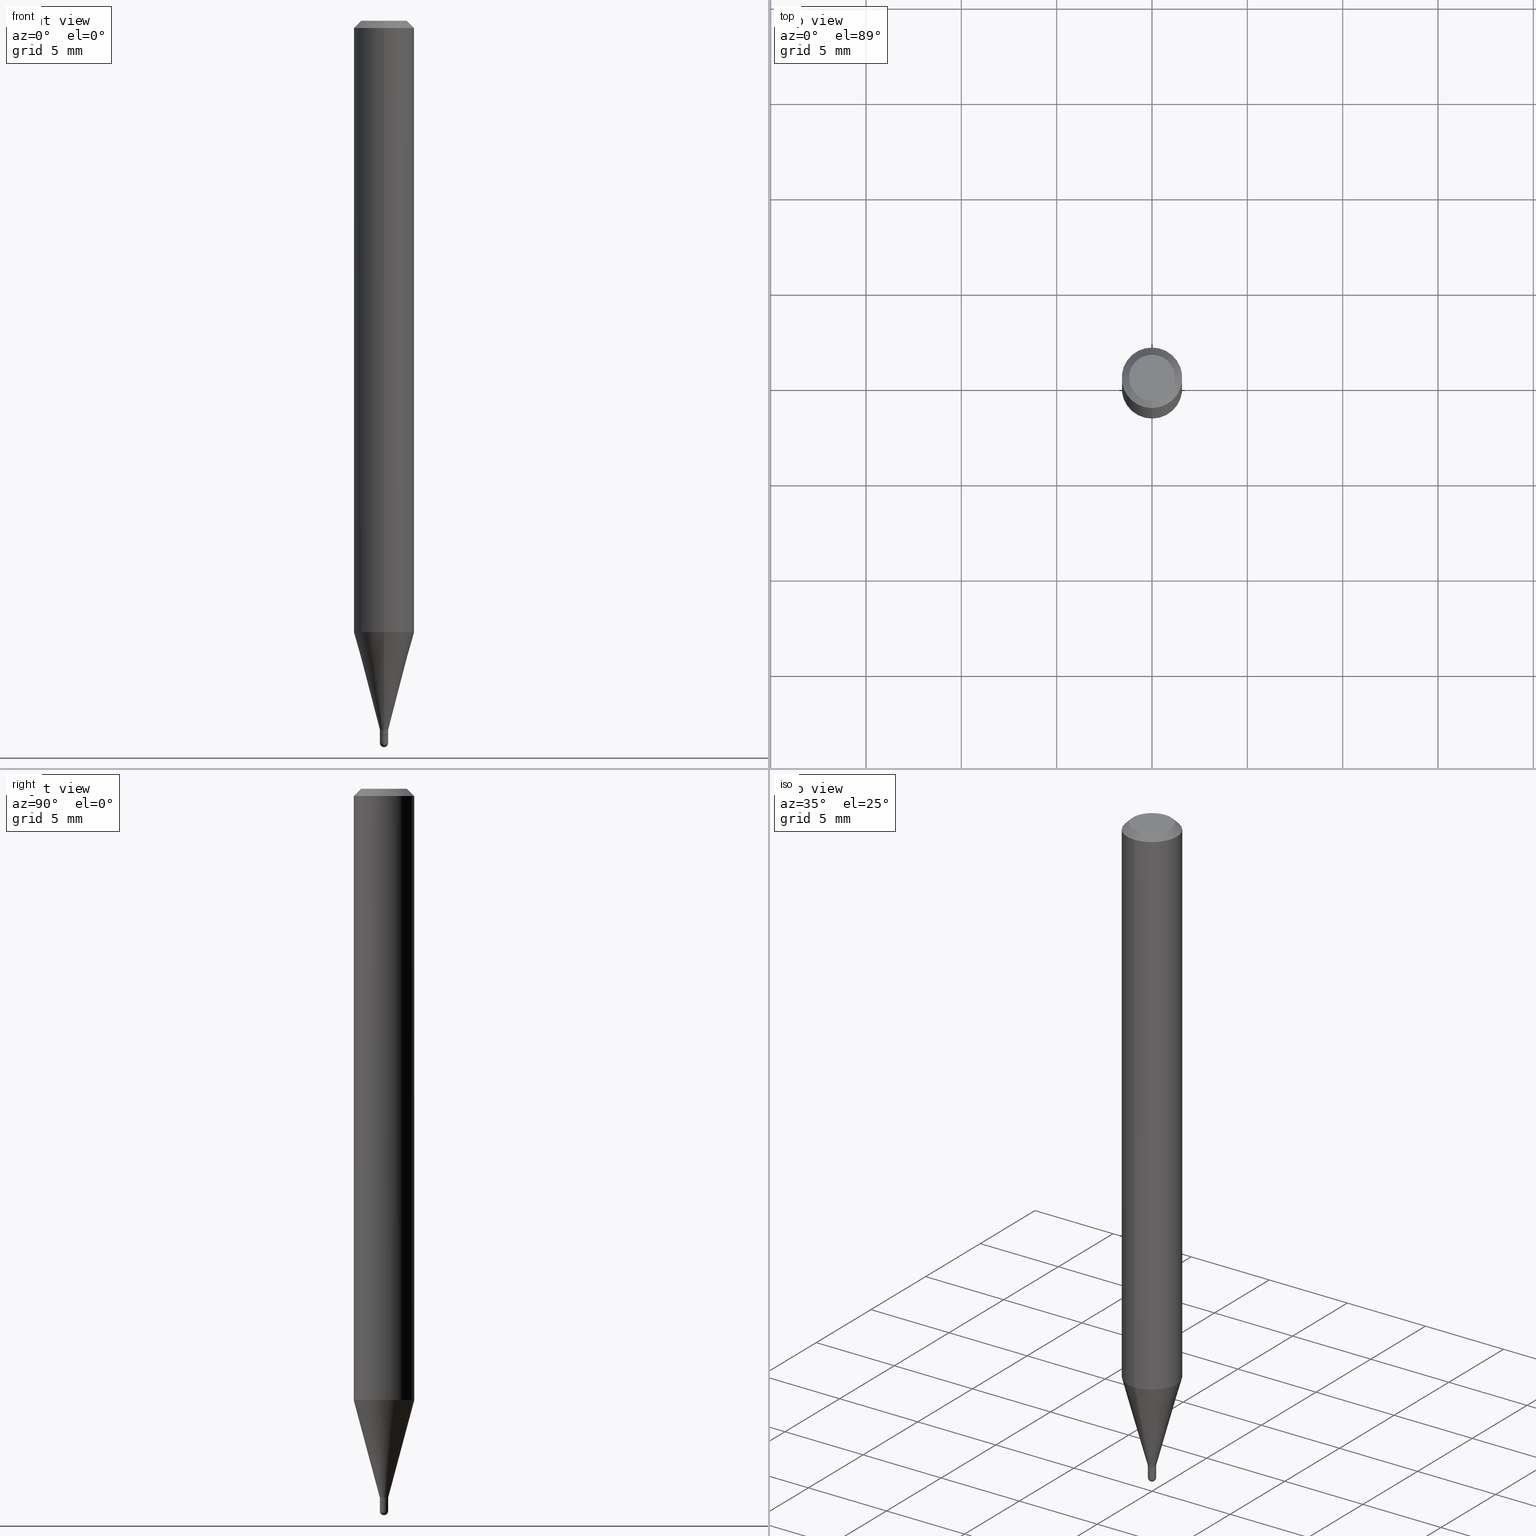
[diagram: canonical four-view strip — front | top / right | iso, engineering-drawing reading convention]
A machine part, canonical four-view strip (front | top / right | iso — engineering-drawing reading convention). The complete STEP part file that produces these views, byte-faithful:
ISO-10303-21;
HEADER;
FILE_DESCRIPTION (( 'STEP AP203' ),
    '1' );
FILE_NAME ('00752.STEP',
    '2024-03-07T18:12:14',
    ( '' ),
    ( '' ),
    'SwSTEP 2.0',
    'SolidWorks 2023',
    '' );
FILE_SCHEMA (( 'CONFIG_CONTROL_DESIGN' ));
ENDSEC;

DATA;
#1 = CARTESIAN_POINT ( 'NONE',  ( 0.000000000000000000, 0.000000000000000000, 0.000000000000000000 ) ) ;
#2 = FACE_OUTER_BOUND ( 'NONE', #91, .T. ) ;
#3 = AXIS2_PLACEMENT_3D ( 'NONE', #103, #63, #212 ) ;
#4 = DATE_TIME_ROLE ( 'classification_date' ) ;
#5 = ORIENTED_EDGE ( 'NONE', *, *, #302, .F. ) ;
#6 = DIRECTION ( 'NONE',  ( -6.982962677686266711E-15, -1.000000000000000000, 0.000000000000000000 ) ) ;
#7 = FACE_OUTER_BOUND ( 'NONE', #478, .T. ) ;
#8 = DIRECTION ( 'NONE',  ( -6.982962677686265922E-15, -1.000000000000000000, 4.370956789862821150E-15 ) ) ;
#9 = CYLINDRICAL_SURFACE ( 'NONE', #16, 0.06250000000000000000 ) ;
#10 = DIRECTION ( 'NONE',  ( 4.937700262164548042E-15, 0.7071067811865451302, -0.7071067811865499042 ) ) ;
#11 = FACE_OUTER_BOUND ( 'NONE', #167, .T. ) ;
#12 = ADVANCED_FACE ( 'NONE', ( #331 ), #30, .T. ) ;
#13 = ORIENTED_EDGE ( 'NONE', *, *, #207, .T. ) ;
#14 = DIRECTION ( 'NONE',  ( 1.000000000000000000, -6.982962677686273021E-15, 0.000000000000000000 ) ) ;
#15 = UNCERTAINTY_MEASURE_WITH_UNIT (LENGTH_MEASURE( 1.000000000000000082E-05 ), #398, 'distance_accuracy_value', 'NONE');
#16 = AXIS2_PLACEMENT_3D ( 'NONE', #130, #284, #432 ) ;
#17 = CARTESIAN_POINT ( 'NONE',  ( -0.008500000000000002345, -5.116597822630066156E-15, -1.491500000000000270 ) ) ;
#18 = DIRECTION ( 'NONE',  ( -2.445473166795262930E-29, 3.491475094201254454E-15, 1.000000000000000000 ) ) ;
#19 = ORIENTED_EDGE ( 'NONE', *, *, #60, .T. ) ;
#20 = DIRECTION ( 'NONE',  ( -2.445473166795262930E-29, 3.491475094201254059E-15, 1.000000000000000000 ) ) ;
#21 = EDGE_CURVE ( 'NONE', #510, #289, #379, .T. ) ;
#22 = DIRECTION ( 'NONE',  ( -2.445468806185136597E-29, 3.491481338843145583E-15, 1.000000000000000000 ) ) ;
#23 = DIRECTION ( 'NONE',  ( -2.445473166795262930E-29, 3.491475094201254454E-15, 1.000000000000000000 ) ) ;
#24 = AXIS2_PLACEMENT_3D ( 'NONE', #351, #203, #329 ) ;
#25 = ORGANIZATION ( 'UNSPECIFIED', 'UNSPECIFIED', '' ) ;
#26 = CARTESIAN_POINT ( 'NONE',  ( 3.603404711272820358E-29, -5.144688551305548872E-15, -1.473500000000000254 ) ) ;
#27 = FACE_OUTER_BOUND ( 'NONE', #53, .T. ) ;
#28 = DIRECTION ( 'NONE',  ( 6.982962677686265922E-15, 1.000000000000000000, 0.000000000000000000 ) ) ;
#29 = EDGE_CURVE ( 'NONE', #200, #190, #362, .T. ) ;
#30 = CONICAL_SURFACE ( 'NONE', #58, 0.06250000000000000000, 0.7853981633974483900 ) ;
#31 = AXIS2_PLACEMENT_3D ( 'NONE', #323, #272, #482 ) ;
#32 = EDGE_CURVE ( 'NONE', #49, #510, #325, .T. ) ;
#33 = ORIENTED_EDGE ( 'NONE', *, *, #449, .F. ) ;
#34 = CARTESIAN_POINT ( 'NONE',  ( 5.935518276036960296E-17, 0.008499999999994775624, -1.491500000000000270 ) ) ;
#35 = ORIENTED_EDGE ( 'NONE', *, *, #143, .T. ) ;
#36 = PRODUCT_DEFINITION_FORMATION_WITH_SPECIFIED_SOURCE ( 'ANY', '', #503, .NOT_KNOWN. ) ;
#37 = APPROVAL_DATE_TIME ( #229, #219 ) ;
#38 = VERTEX_POINT ( 'NONE', #208 ) ;
#39 = CARTESIAN_POINT ( 'NONE',  ( -5.586370142145408225E-17, -0.008000000000005147091, -1.474000000000000199 ) ) ;
#40 = DIMENSIONAL_EXPONENTS ( 1.000000000000000000, 0.000000000000000000, 0.000000000000000000, 0.000000000000000000, 0.000000000000000000, 0.000000000000000000, 0.000000000000000000 ) ;
#41 = PERSON_AND_ORGANIZATION ( #64, #25 ) ;
#42 = VERTEX_POINT ( 'NONE', #17 ) ;
#43 = DIRECTION ( 'NONE',  ( 2.438088387897960049E-29, -3.491481338843145188E-15, -1.000000000000000000 ) ) ;
#44 = VERTEX_POINT ( 'NONE', #291 ) ;
#45 = DIRECTION ( 'NONE',  ( 6.982962677686265922E-15, 1.000000000000000000, 0.000000000000000000 ) ) ;
#46 = DIRECTION ( 'NONE',  ( -1.000000000000000000, 6.982962677686265922E-15, -4.876176775795935793E-29 ) ) ;
#47 = CIRCLE ( 'NONE', #145, 0.04749999999999999362 ) ;
#48 = AXIS2_PLACEMENT_3D ( 'NONE', #283, #129, #8 ) ;
#49 = VERTEX_POINT ( 'NONE', #450 ) ;
#50 = DIRECTION ( 'NONE',  ( -2.445473166795262930E-29, 3.491475094201254454E-15, 1.000000000000000000 ) ) ;
#51 = EDGE_CURVE ( 'NONE', #38, #119, #157, .T. ) ;
#52 = DIRECTION ( 'NONE',  ( -2.445473166795262930E-29, 3.491475094201254454E-15, 1.000000000000000000 ) ) ;
#53 = EDGE_LOOP ( 'NONE', ( #131, #425 ) ) ;
#54 = CARTESIAN_POINT ( 'NONE',  ( 3.580172716188264885E-29, -5.111519537910637170E-15, -1.463999999999999968 ) ) ;
#55 =( LENGTH_UNIT ( ) NAMED_UNIT ( * ) SI_UNIT ( $, .METRE. ) );
#56 = CARTESIAN_POINT ( 'NONE',  ( -5.935518276029691682E-17, -0.008500000000005034778, -1.463999999999999968 ) ) ;
#57 = CARTESIAN_POINT ( 'NONE',  ( -4.364351673553916201E-16, -0.06250000000000000000, 2.182171933875784034E-16 ) ) ;
#58 = AXIS2_PLACEMENT_3D ( 'NONE', #320, #247, #127 ) ;
#59 = CIRCLE ( 'NONE', #48, 0.06250000000000000000 ) ;
#60 = EDGE_CURVE ( 'NONE', #42, #358, #198, .T. ) ;
#61 = ORIENTED_EDGE ( 'NONE', *, *, #293, .T. ) ;
#62 = VERTEX_POINT ( 'NONE', #292 ) ;
#63 = DIRECTION ( 'NONE',  ( -2.445473166795262930E-29, 3.491475094201254454E-15, 1.000000000000000000 ) ) ;
#64 = PERSON ( 'UNSPECIFIED', 'UNSPECIFIED', 'UNSPECIFIED', ('UNSPECIFIED'), ('UNSPECIFIED'), ('UNSPECIFIED') ) ;
#65 = AXIS2_PLACEMENT_3D ( 'NONE', #244, #199, #437 ) ;
#66 = AXIS2_PLACEMENT_3D ( 'NONE', #234, #43, #46 ) ;
#67 = CARTESIAN_POINT ( 'NONE',  ( 3.603404711272820358E-29, -5.144688551305548872E-15, -1.473500000000000254 ) ) ;
#68 = CC_DESIGN_PERSON_AND_ORGANIZATION_ASSIGNMENT ( #424, #477, ( #36 ) ) ;
#69 = DIRECTION ( 'NONE',  ( 6.982962677686265922E-15, 1.000000000000000000, -3.491475094201254059E-15 ) ) ;
#70 = PERSON_AND_ORGANIZATION_ROLE ( 'design_owner' ) ;
#71 = ADVANCED_FACE ( 'NONE', ( #79 ), #9, .T. ) ;
#72 = AXIS2_PLACEMENT_3D ( 'NONE', #141, #335, #495 ) ;
#73 = AXIS2_PLACEMENT_3D ( 'NONE', #316, #388, #440 ) ;
#74 = ORIENTED_EDGE ( 'NONE', *, *, #385, .F. ) ;
#75 = ORIENTED_EDGE ( 'NONE', *, *, #32, .F. ) ;
#76 = LINE ( 'NONE', #88, #288 ) ;
#77 = CIRCLE ( 'NONE', #367, 0.008499999999999922548 ) ;
#78 = CC_DESIGN_APPROVAL ( #360, ( #36 ) ) ;
#79 = FACE_OUTER_BOUND ( 'NONE', #410, .T. ) ;
#80 = ORIENTED_EDGE ( 'NONE', *, *, #104, .F. ) ;
#81 = FACE_OUTER_BOUND ( 'NONE', #188, .T. ) ;
#82 = CARTESIAN_POINT ( 'NONE',  ( 2.166839918850192091E-46, -3.093662082459440029E-32, -8.860616212320934606E-18 ) ) ;
#83 = DIRECTION ( 'NONE',  ( -2.445473166795262930E-29, 3.491475094201254454E-15, 1.000000000000000000 ) ) ;
#84 = DIRECTION ( 'NONE',  ( -4.937700262164674260E-15, -0.7071067811865632269, 0.7071067811865319186 ) ) ;
#85 = DIRECTION ( 'NONE',  ( -6.982962677686265922E-15, -1.000000000000000000, 4.370956789862821150E-15 ) ) ;
#86 = ADVANCED_FACE ( 'NONE', ( #192 ), #177, .T. ) ;
#87 = CARTESIAN_POINT ( 'NONE',  ( -5.935518276033272371E-17, -0.008499999999999924283, 2.967753830071039913E-17 ) ) ;
#88 = CARTESIAN_POINT ( 'NONE',  ( 6.039613253964376003E-17, 0.008499999999994812053, -1.463999999999999968 ) ) ;
#89 = AXIS2_PLACEMENT_3D ( 'NONE', #297, #22, #174 ) ;
#90 = CONICAL_SURFACE ( 'NONE', #31, 0.06250000000000000000, 0.7853981633974483900 ) ;
#91 = EDGE_LOOP ( 'NONE', ( #465, #429, #197, #5 ) ) ;
#92 = LINE ( 'NONE', #87, #348 ) ;
#93 = ORIENTED_EDGE ( 'NONE', *, *, #189, .T. ) ;
#94 = DIRECTION ( 'NONE',  ( -6.982962677686265922E-15, -1.000000000000000000, 3.483106191921935554E-15 ) ) ;
#95 = CC_DESIGN_DATE_AND_TIME_ASSIGNMENT ( #504, #257, ( #246 ) ) ;
#96 = ORIENTED_EDGE ( 'NONE', *, *, #474, .T. ) ;
#97 = CYLINDRICAL_SURFACE ( 'NONE', #441, 0.008499999999999924283 ) ;
#98 = VECTOR ( 'NONE', #171, 39.37007874015749564 ) ;
#99 = AXIS2_PLACEMENT_3D ( 'NONE', #67, #23, #175 ) ;
#100 = ORIENTED_EDGE ( 'NONE', *, *, #338, .F. ) ;
#101 = DIRECTION ( 'NONE',  ( -7.105427357601000281E-15, -1.000000000000000000, 0.000000000000000000 ) ) ;
#102 = CALENDAR_DATE ( 2024, 7, 3 ) ;
#103 = CARTESIAN_POINT ( 'NONE',  ( 3.604627447856218103E-29, -5.146434288852649446E-15, -1.474000000000000199 ) ) ;
#104 = EDGE_CURVE ( 'NONE', #405, #294, #242, .T. ) ;
#105 = CIRCLE ( 'NONE', #337, 0.008499999999999964181 ) ;
#106 = DIRECTION ( 'NONE',  ( -6.982962677686265922E-15, -1.000000000000000000, 3.491475094201254059E-15 ) ) ;
#107 = MECHANICAL_CONTEXT ( 'NONE', #417, 'mechanical' ) ;
#108 = EDGE_CURVE ( 'NONE', #200, #278, #47, .T. ) ;
#109 = CARTESIAN_POINT ( 'NONE',  ( 0.000000000000000000, 0.000000000000000000, 0.000000000000000000 ) ) ;
#110 = VECTOR ( 'NONE', #303, 39.37007874015748143 ) ;
#111 = ORIENTED_EDGE ( 'NONE', *, *, #489, .F. ) ;
#112 = CIRCLE ( 'NONE', #73, 0.04749999999999999362 ) ;
#113 = SHAPE_DEFINITION_REPRESENTATION ( #308, #411 ) ;
#114 = EDGE_LOOP ( 'NONE', ( #285, #123, #382, #61 ) ) ;
#115 = ORIENTED_EDGE ( 'NONE', *, *, #273, .T. ) ;
#116 = MANIFOLD_SOLID_BREP ( 'Body-Move/Copy2[2]', #295 ) ;
#117 = ADVANCED_FACE ( 'NONE', ( #27 ), #498, .F. ) ;
#118 = CARTESIAN_POINT ( 'NONE',  ( 3.580172716188264885E-29, -5.111519537910637170E-15, -1.463999999999999968 ) ) ;
#119 = VERTEX_POINT ( 'NONE', #140 ) ;
#120 = DIRECTION ( 'NONE',  ( -6.982962677686265922E-15, -1.000000000000000000, 3.491475094201254454E-15 ) ) ;
#121 = CC_DESIGN_APPROVAL ( #219, ( #344 ) ) ;
#122 = DIRECTION ( 'NONE',  ( -2.445473166795262930E-29, 3.491475094201254059E-15, 1.000000000000000000 ) ) ;
#123 = ORIENTED_EDGE ( 'NONE', *, *, #108, .F. ) ;
#124 = CARTESIAN_POINT ( 'NONE',  ( -5.586370142145408225E-17, -0.008000000000005147091, -1.474000000000000199 ) ) ;
#125 = PERSON_AND_ORGANIZATION_ROLE ( 'classification_officer' ) ;
#126 = APPROVAL ( #220, 'UNSPECIFIED' ) ;
#127 = DIRECTION ( 'NONE',  ( 6.982962677686265922E-15, 1.000000000000000000, -3.483106191921935554E-15 ) ) ;
#128 = CYLINDRICAL_SURFACE ( 'NONE', #509, 0.008500000000000002345 ) ;
#129 = DIRECTION ( 'NONE',  ( -2.445473166795262930E-29, 3.491475094201254454E-15, 1.000000000000000000 ) ) ;
#130 = CARTESIAN_POINT ( 'NONE',  ( 0.000000000000000000, 0.000000000000000000, 0.000000000000000000 ) ) ;
#131 = ORIENTED_EDGE ( 'NONE', *, *, #108, .T. ) ;
#132 = CARTESIAN_POINT ( 'NONE',  ( -4.287811248607203282E-16, -0.06250000000000005551, -0.01499999999999979128 ) ) ;
#133 = CIRCLE ( 'NONE', #160, 0.008499999999999964181 ) ;
#134 = VERTEX_POINT ( 'NONE', #186 ) ;
#135 = DIRECTION ( 'NONE',  ( -2.445473166795262930E-29, 3.491475094201254454E-15, 1.000000000000000000 ) ) ;
#136 = VERTEX_POINT ( 'NONE', #34 ) ;
#137 = FACE_OUTER_BOUND ( 'NONE', #231, .T. ) ;
#138 = VERTEX_POINT ( 'NONE', #270 ) ;
#139 = AXIS2_PLACEMENT_3D ( 'NONE', #468, #181, #386 ) ;
#140 = CARTESIAN_POINT ( 'NONE',  ( 0.008500000000000000611, -5.205798676215130324E-15, -1.474000000000000199 ) ) ;
#141 = CARTESIAN_POINT ( 'NONE',  ( 3.604621020316892110E-29, -5.146443493454796836E-15, -1.474000000000000199 ) ) ;
#142 = PLANE ( 'NONE',  #224 ) ;
#143 = EDGE_CURVE ( 'NONE', #62, #136, #221, .T. ) ;
#144 = DIRECTION ( 'NONE',  ( 1.000000000000000000, -6.982962677686265922E-15, 4.876176775795935232E-29 ) ) ;
#145 = AXIS2_PLACEMENT_3D ( 'NONE', #82, #52, #447 ) ;
#146 = PERSON_AND_ORGANIZATION ( #64, #25 ) ;
#147 = CIRCLE ( 'NONE', #99, 0.008499999999999924283 ) ;
#148 = ADVANCED_FACE ( 'NONE', ( #464 ), #500, .T. ) ;
#149 = APPROVAL_STATUS ( 'not_yet_approved' ) ;
#150 = ORIENTED_EDGE ( 'NONE', *, *, #428, .T. ) ;
#151 = CC_DESIGN_PERSON_AND_ORGANIZATION_ASSIGNMENT ( #346, #264, ( #36 ) ) ;
#152 = ORIENTED_EDGE ( 'NONE', *, *, #259, .T. ) ;
#153 = CALENDAR_DATE ( 2024, 7, 3 ) ;
#154 = ORIENTED_EDGE ( 'NONE', *, *, #474, .F. ) ;
#155 = DIRECTION ( 'NONE',  ( -2.445473166795262930E-29, 3.491475094201254454E-15, 1.000000000000000000 ) ) ;
#156 = ORIENTED_EDGE ( 'NONE', *, *, #293, .F. ) ;
#157 = CIRCLE ( 'NONE', #72, 0.008500000000000000611 ) ;
#158 = FACE_OUTER_BOUND ( 'NONE', #310, .T. ) ;
#159 = CYLINDRICAL_SURFACE ( 'NONE', #467, 0.06250000000000000000 ) ;
#160 = AXIS2_PLACEMENT_3D ( 'NONE', #497, #173, #28 ) ;
#161 = EDGE_CURVE ( 'NONE', #62, #119, #222, .T. ) ;
#162 = PERSON_AND_ORGANIZATION ( #64, #25 ) ;
#163 = EDGE_LOOP ( 'NONE', ( #152, #353, #443, #33 ) ) ;
#164 = FACE_OUTER_BOUND ( 'NONE', #452, .T. ) ;
#165 = EDGE_LOOP ( 'NONE', ( #266, #225, #238, #271 ) ) ;
#166 = CARTESIAN_POINT ( 'NONE',  ( 3.647416724425131194E-29, -5.207544416884551827E-15, -1.491500000000000270 ) ) ;
#167 = EDGE_LOOP ( 'NONE', ( #371, #493, #391, #213 ) ) ;
#168 = CARTESIAN_POINT ( 'NONE',  ( 3.668209750192896848E-31, -5.237212641301884589E-17, -0.01500000000000000812 ) ) ;
#169 = AXIS2_PLACEMENT_3D ( 'NONE', #256, #339, #69 ) ;
#170 = VECTOR ( 'NONE', #84, 39.37007874015748143 ) ;
#171 = DIRECTION ( 'NONE',  ( -1.807323732225328562E-15, -0.2588190451025179639, 0.9659258262890689783 ) ) ;
#172 = ORIENTED_EDGE ( 'NONE', *, *, #21, .F. ) ;
#173 = DIRECTION ( 'NONE',  ( 1.000000000000000000, -6.982962677686265922E-15, 4.883557194083112340E-29 ) ) ;
#174 = DIRECTION ( 'NONE',  ( 1.000000000000000000, -6.982962677686273021E-15, 0.000000000000000000 ) ) ;
#175 = DIRECTION ( 'NONE',  ( -6.982962677686266711E-15, -1.000000000000000000, 0.000000000000000000 ) ) ;
#176 = ADVANCED_FACE ( 'NONE', ( #462 ), #261, .T. ) ;
#177 = CONICAL_SURFACE ( 'NONE', #328, 0.008499999999999922548, 0.2617993877991501295 ) ;
#178 = CIRCLE ( 'NONE', #349, 0.008499999999999924283 ) ;
#179 = CARTESIAN_POINT ( 'NONE',  ( -0.008500000000000002345, 6.039613253960853246E-17, -4.181094826716670944E-31 ) ) ;
#180 = COORDINATED_UNIVERSAL_TIME_OFFSET ( 5, 0, .BEHIND. ) ;
#181 = DIRECTION ( 'NONE',  ( -2.445468806185136597E-29, 3.491481338843145583E-15, 1.000000000000000000 ) ) ;
#182 = EDGE_CURVE ( 'NONE', #134, #49, #92, .T. ) ;
#183 = CIRCLE ( 'NONE', #475, 0.008500000000000002345 ) ;
#184 = CC_DESIGN_SECURITY_CLASSIFICATION ( #344, ( #36 ) ) ;
#185 = CARTESIAN_POINT ( 'NONE',  ( 5.684341886084405714E-17, 0.007999999999994853242, -1.474000000000000199 ) ) ;
#186 = CARTESIAN_POINT ( 'NONE',  ( -5.935518276029690450E-17, -0.008500000000005098963, -1.473500000000000254 ) ) ;
#187 = APPLICATION_PROTOCOL_DEFINITION ( 'international standard', 'config_control_design', 1994, #417 ) ;
#188 = EDGE_LOOP ( 'NONE', ( #243, #315 ) ) ;
#189 = EDGE_CURVE ( 'NONE', #278, #138, #444, .T. ) ;
#190 = VERTEX_POINT ( 'NONE', #281 ) ;
#191 = APPROVAL_PERSON_ORGANIZATION ( #262, #126, #309 ) ;
#192 = FACE_OUTER_BOUND ( 'NONE', #364, .T. ) ;
#193 = ORIENTED_EDGE ( 'NONE', *, *, #161, .T. ) ;
#194 = EDGE_CURVE ( 'NONE', #358, #62, #460, .T. ) ;
#195 = CARTESIAN_POINT ( 'NONE',  ( 0.000000000000000000, 0.000000000000000000, 0.000000000000000000 ) ) ;
#196 = COORDINATED_UNIVERSAL_TIME_OFFSET ( 5, 0, .BEHIND. ) ;
#197 = ORIENTED_EDGE ( 'NONE', *, *, #273, .F. ) ;
#198 = CIRCLE ( 'NONE', #89, 0.008500000000000002345 ) ;
#199 = DIRECTION ( 'NONE',  ( -2.445473166795262930E-29, 3.491475094201254454E-15, 1.000000000000000000 ) ) ;
#200 = VERTEX_POINT ( 'NONE', #439 ) ;
#201 = DIRECTION ( 'NONE',  ( -2.445473166795262930E-29, 3.491475094201254454E-15, 1.000000000000000000 ) ) ;
#202 = CARTESIAN_POINT ( 'NONE',  ( 3.580172716188264885E-29, -5.111519537910637170E-15, -1.463999999999999968 ) ) ;
#203 = DIRECTION ( 'NONE',  ( -2.445473166795262930E-29, 3.491475094201254454E-15, 1.000000000000000000 ) ) ;
#204 = ORIENTED_EDGE ( 'NONE', *, *, #51, .F. ) ;
#205 = DIRECTION ( 'NONE',  ( -2.445473166795262930E-29, 3.491475094201254059E-15, 1.000000000000000000 ) ) ;
#206 = CARTESIAN_POINT ( 'NONE',  ( 0.000000000000000000, 0.000000000000000000, 0.000000000000000000 ) ) ;
#207 = EDGE_CURVE ( 'NONE', #294, #49, #311, .T. ) ;
#208 = CARTESIAN_POINT ( 'NONE',  ( -0.008500000000000000611, -5.116597822630066156E-15, -1.474000000000000199 ) ) ;
#209 = DIRECTION ( 'NONE',  ( -2.445473166795262930E-29, 3.491475094201254454E-15, 1.000000000000000000 ) ) ;
#210 = AXIS2_PLACEMENT_3D ( 'NONE', #390, #277, #434 ) ;
#211 = ORIENTED_EDGE ( 'NONE', *, *, #338, .T. ) ;
#212 = DIRECTION ( 'NONE',  ( -6.982962677686266711E-15, -1.000000000000000000, 0.000000000000000000 ) ) ;
#213 = ORIENTED_EDGE ( 'NONE', *, *, #194, .F. ) ;
#214 = CARTESIAN_POINT ( 'NONE',  ( 3.604627447856218103E-29, -5.146434288852649446E-15, -1.474000000000000199 ) ) ;
#215 = CC_DESIGN_PERSON_AND_ORGANIZATION_ASSIGNMENT ( #419, #506, ( #246 ) ) ;
#216 = AXIS2_PLACEMENT_3D ( 'NONE', #279, #401, #45 ) ;
#217 = APPROVAL_ROLE ( '' ) ;
#218 = CARTESIAN_POINT ( 'NONE',  ( -6.039613253957192439E-17, -0.008500000000005190903, -1.491500000000000270 ) ) ;
#219 = APPROVAL ( #237, 'UNSPECIFIED' ) ;
#220 = APPROVAL_STATUS ( 'not_yet_approved' ) ;
#221 = CIRCLE ( 'NONE', #139, 0.008500000000000002345 ) ;
#222 = LINE ( 'NONE', #228, #110 ) ;
#223 = APPROVAL_DATE_TIME ( #463, #360 ) ;
#224 = AXIS2_PLACEMENT_3D ( 'NONE', #298, #254, #106 ) ;
#225 = ORIENTED_EDGE ( 'NONE', *, *, #378, .T. ) ;
#226 = ADVANCED_FACE ( 'NONE', ( #158 ), #97, .T. ) ;
#227 = VERTEX_POINT ( 'NONE', #124 ) ;
#228 = CARTESIAN_POINT ( 'NONE',  ( 0.008500000000000002345, -5.935518276033327838E-17, 4.144750259426545879E-31 ) ) ;
#229 = DATE_AND_TIME ( #153, #263 ) ;
#230 = AXIS2_PLACEMENT_3D ( 'NONE', #484, #83, #290 ) ;
#231 = EDGE_LOOP ( 'NONE', ( #370, #211, #276, #350, #35 ) ) ;
#232 = DIRECTION ( 'NONE',  ( 1.839019923739599526E-15, 0.2588190451025248473, 0.9659258262890673130 ) ) ;
#233 = ADVANCED_FACE ( 'NONE', ( #11 ), #492, .T. ) ;
#234 = CARTESIAN_POINT ( 'NONE',  ( 5.935518276036931946E-17, 0.008499999999994853686, -1.474000000000000199 ) ) ;
#235 = DIRECTION ( 'NONE',  ( -6.982962677686266711E-15, -1.000000000000000000, 0.000000000000000000 ) ) ;
#236 = DIRECTION ( 'NONE',  ( -6.982962677686266711E-15, -1.000000000000000000, 0.000000000000000000 ) ) ;
#237 = APPROVAL_STATUS ( 'not_yet_approved' ) ;
#238 = ORIENTED_EDGE ( 'NONE', *, *, #449, .T. ) ;
#239 = VECTOR ( 'NONE', #319, 39.37007874015748143 ) ;
#240 = LENGTH_MEASURE_WITH_UNIT ( LENGTH_MEASURE( 0.02539999999999999897 ), #55 );
#241 =( GEOMETRIC_REPRESENTATION_CONTEXT ( 3 ) GLOBAL_UNCERTAINTY_ASSIGNED_CONTEXT ( ( #15 ) ) GLOBAL_UNIT_ASSIGNED_CONTEXT ( ( #398, #445, #485 ) ) REPRESENTATION_CONTEXT ( 'NONE', 'WORKASPACE' ) );
#242 = LINE ( 'NONE', #399, #466 ) ;
#243 = ORIENTED_EDGE ( 'NONE', *, *, #505, .T. ) ;
#244 = CARTESIAN_POINT ( 'NONE',  ( 3.604627447856218103E-29, -5.146434288852649446E-15, -1.474000000000000199 ) ) ;
#245 = DIRECTION ( 'NONE',  ( -2.445468806185136597E-29, 3.491481338843145583E-15, 1.000000000000000000 ) ) ;
#246 = PRODUCT_DEFINITION ( 'UNKNOWN', '', #36, #249 ) ;
#247 = DIRECTION ( 'NONE',  ( 2.445473166795262930E-29, -3.491475094201254454E-15, -1.000000000000000000 ) ) ;
#248 = CARTESIAN_POINT ( 'NONE',  ( 2.522426711948687250E-16, 0.008499999999994812053, -1.463999999999999968 ) ) ;
#249 = DESIGN_CONTEXT ( 'detailed design', #409, 'design' ) ;
#250 = ORIENTED_EDGE ( 'NONE', *, *, #60, .F. ) ;
#251 = ADVANCED_FACE ( 'NONE', ( #490 ), #287, .T. ) ;
#252 = ORIENTED_EDGE ( 'NONE', *, *, #194, .T. ) ;
#253 = CALENDAR_DATE ( 2024, 7, 3 ) ;
#254 = DIRECTION ( 'NONE',  ( -2.445473166795262650E-29, 3.491475094201254059E-15, 1.000000000000000000 ) ) ;
#255 = CC_DESIGN_APPROVAL ( #126, ( #246 ) ) ;
#256 = CARTESIAN_POINT ( 'NONE',  ( 3.316907271900976096E-16, 0.04749999999999999362, -1.702753750807200171E-16 ) ) ;
#257 = DATE_TIME_ROLE ( 'creation_date' ) ;
#258 = LINE ( 'NONE', #185, #357 ) ;
#259 = EDGE_CURVE ( 'NONE', #227, #313, #508, .T. ) ;
#260 = APPLICATION_PROTOCOL_DEFINITION ( 'international standard', 'config_control_design', 1994, #409 ) ;
#261 = CYLINDRICAL_SURFACE ( 'NONE', #24, 0.008499999999999924283 ) ;
#262 = PERSON_AND_ORGANIZATION ( #64, #25 ) ;
#263 = LOCAL_TIME ( 13, 12, 14.00000000000000000, #361 ) ;
#264 = PERSON_AND_ORGANIZATION_ROLE ( 'creator' ) ;
#265 = EDGE_CURVE ( 'NONE', #49, #294, #77, .T. ) ;
#266 = ORIENTED_EDGE ( 'NONE', *, *, #418, .F. ) ;
#267 = CARTESIAN_POINT ( 'NONE',  ( 3.646689833079329078E-29, -5.208585366663827303E-15, -1.491500000000000270 ) ) ;
#268 = SECURITY_CLASSIFICATION_LEVEL ( 'unclassified' ) ;
#269 = EDGE_LOOP ( 'NONE', ( #488, #96, #172, #75 ) ) ;
#270 = CARTESIAN_POINT ( 'NONE',  ( -4.364351673553912750E-16, -0.06250000000000005551, -0.01499999999999979128 ) ) ;
#271 = ORIENTED_EDGE ( 'NONE', *, *, #324, .F. ) ;
#272 = DIRECTION ( 'NONE',  ( 2.445473166795262930E-29, -3.491475094201254454E-15, -1.000000000000000000 ) ) ;
#273 = EDGE_CURVE ( 'NONE', #138, #190, #274, .T. ) ;
#274 = CIRCLE ( 'NONE', #406, 0.06250000000000000000 ) ;
#275 = DIRECTION ( 'NONE',  ( -6.982962677686266711E-15, -1.000000000000000000, 0.000000000000000000 ) ) ;
#276 = ORIENTED_EDGE ( 'NONE', *, *, #505, .F. ) ;
#277 = DIRECTION ( 'NONE',  ( -2.445468806185136597E-29, 3.491481338843145583E-15, 1.000000000000000000 ) ) ;
#278 = VERTEX_POINT ( 'NONE', #481 ) ;
#279 = CARTESIAN_POINT ( 'NONE',  ( 3.646689833079329078E-29, -5.208585366663827303E-15, -1.491500000000000270 ) ) ;
#280 = DIRECTION ( 'NONE',  ( -2.445473166795262930E-29, 3.491475094201254454E-15, 1.000000000000000000 ) ) ;
#281 = CARTESIAN_POINT ( 'NONE',  ( 4.440892098500935790E-16, 0.06249999999999995143, -0.01500000000000022669 ) ) ;
#282 = PLANE ( 'NONE',  #66 ) ;
#283 = CARTESIAN_POINT ( 'NONE',  ( 3.087334690408846546E-29, -4.407879965884935639E-15, -1.262469256391280936 ) ) ;
#284 = DIRECTION ( 'NONE',  ( -2.445473166795262930E-29, 3.491475094201254454E-15, 1.000000000000000000 ) ) ;
#285 = ORIENTED_EDGE ( 'NONE', *, *, #189, .F. ) ;
#286 = EDGE_CURVE ( 'NONE', #136, #42, #183, .T. ) ;
#287 = CONICAL_SURFACE ( 'NONE', #501, 0.008000000000000000167, 0.7853981633974739252 ) ;
#288 = VECTOR ( 'NONE', #232, 39.37007874015747433 ) ;
#289 = VERTEX_POINT ( 'NONE', #393 ) ;
#290 = DIRECTION ( 'NONE',  ( -6.982962677686266711E-15, -1.000000000000000000, 0.000000000000000000 ) ) ;
#291 = CARTESIAN_POINT ( 'NONE',  ( 3.667839763604803277E-29, -5.237742483154356704E-15, -1.500000000000000222 ) ) ;
#292 = CARTESIAN_POINT ( 'NONE',  ( 0.008500000000000002345, -5.236349137930007031E-15, -1.491500000000000270 ) ) ;
#293 = EDGE_CURVE ( 'NONE', #190, #138, #369, .T. ) ;
#294 = VERTEX_POINT ( 'NONE', #248 ) ;
#295 = CLOSED_SHELL ( 'NONE', ( #226, #352, #435, #494, #469, #86, #71, #12, #117, #412, #251, #176 ) ) ;
#296 = CONICAL_SURFACE ( 'NONE', #3, 0.008000000000000000167, 0.7853981633974739252 ) ;
#297 = CARTESIAN_POINT ( 'NONE',  ( 3.647416724425131194E-29, -5.207544416884551827E-15, -1.491500000000000270 ) ) ;
#298 = CARTESIAN_POINT ( 'NONE',  ( 3.604627447856218103E-29, -5.146434288852649446E-15, -1.474000000000000199 ) ) ;
#299 = COORDINATED_UNIVERSAL_TIME_OFFSET ( 5, 0, .BEHIND. ) ;
#300 = DIRECTION ( 'NONE',  ( -2.445468806185136877E-29, 3.491481338843145188E-15, 1.000000000000000000 ) ) ;
#301 = DIRECTION ( 'NONE',  ( -6.982962677686266711E-15, -1.000000000000000000, 0.000000000000000000 ) ) ;
#302 = EDGE_CURVE ( 'NONE', #510, #138, #404, .T. ) ;
#303 = DIRECTION ( 'NONE',  ( -2.445468806185136877E-29, 3.491481338843145188E-15, 1.000000000000000000 ) ) ;
#304 = COORDINATED_UNIVERSAL_TIME_OFFSET ( 5, 0, .BEHIND. ) ;
#305 = DIRECTION ( 'NONE',  ( -6.982962677686266711E-15, -1.000000000000000000, 0.000000000000000000 ) ) ;
#306 = CC_DESIGN_PERSON_AND_ORGANIZATION_ASSIGNMENT ( #41, #125, ( #344 ) ) ;
#307 = ADVANCED_FACE ( 'NONE', ( #137 ), #389, .T. ) ;
#308 = PRODUCT_DEFINITION_SHAPE ( 'NONE', 'NONE',  #246 ) ;
#309 = APPROVAL_ROLE ( '' ) ;
#310 = EDGE_LOOP ( 'NONE', ( #448, #433, #427, #470 ) ) ;
#311 = CIRCLE ( 'NONE', #230, 0.008499999999999922548 ) ;
#312 = CIRCLE ( 'NONE', #453, 0.008000000000000000167 ) ;
#313 = VERTEX_POINT ( 'NONE', #454 ) ;
#314 = APPROVAL_ROLE ( '' ) ;
#315 = ORIENTED_EDGE ( 'NONE', *, *, #51, .T. ) ;
#316 = CARTESIAN_POINT ( 'NONE',  ( 2.166839918850192091E-46, -3.093662082459440029E-32, -8.860616212320934606E-18 ) ) ;
#317 = VECTOR ( 'NONE', #10, 39.37007874015748143 ) ;
#318 = AXIS2_PLACEMENT_3D ( 'NONE', #168, #135, #94 ) ;
#319 = DIRECTION ( 'NONE',  ( -4.851104656540964275E-15, -0.7071067811865500152, -0.7071067811865450192 ) ) ;
#320 = CARTESIAN_POINT ( 'NONE',  ( 3.668209750192896848E-31, -5.237212641301884589E-17, -0.01500000000000000812 ) ) ;
#321 = DIRECTION ( 'NONE',  ( -6.982962677686265922E-15, -1.000000000000000000, 3.483106191921935554E-15 ) ) ;
#322 = LINE ( 'NONE', #39, #170 ) ;
#323 = CARTESIAN_POINT ( 'NONE',  ( 3.668209750192896848E-31, -5.237212641301884589E-17, -0.01500000000000000812 ) ) ;
#324 = EDGE_CURVE ( 'NONE', #405, #134, #147, .T. ) ;
#325 = LINE ( 'NONE', #56, #98 ) ;
#326 = DIRECTION ( 'NONE',  ( -2.445473166795262930E-29, 3.491475094201254454E-15, 1.000000000000000000 ) ) ;
#327 = ORIENTED_EDGE ( 'NONE', *, *, #29, .F. ) ;
#328 = AXIS2_PLACEMENT_3D ( 'NONE', #118, #155, #275 ) ;
#329 = DIRECTION ( 'NONE',  ( -6.982962677686265133E-15, -1.000000000000000000, 3.491475094201254454E-15 ) ) ;
#330 = APPROVAL_PERSON_ORGANIZATION ( #146, #360, #217 ) ;
#331 = FACE_OUTER_BOUND ( 'NONE', #114, .T. ) ;
#332 = DIRECTION ( 'NONE',  ( 1.000000000000000000, -6.982962677686273021E-15, 0.000000000000000000 ) ) ;
#333 = EDGE_CURVE ( 'NONE', #134, #405, #178, .T. ) ;
#334 = ORIENTED_EDGE ( 'NONE', *, *, #324, .T. ) ;
#335 = DIRECTION ( 'NONE',  ( -2.445468806185136597E-29, 3.491481338843145583E-15, 1.000000000000000000 ) ) ;
#336 = AXIS2_PLACEMENT_3D ( 'NONE', #267, #426, #383 ) ;
#337 = AXIS2_PLACEMENT_3D ( 'NONE', #414, #458, #101 ) ;
#338 = EDGE_CURVE ( 'NONE', #42, #38, #374, .T. ) ;
#339 = DIRECTION ( 'NONE',  ( 2.445473166795262650E-29, -3.491475094201254059E-15, -1.000000000000000000 ) ) ;
#340 = CALENDAR_DATE ( 2024, 7, 3 ) ;
#341 = CARTESIAN_POINT ( 'NONE',  ( 6.039613253964380934E-17, 0.008499999999994751337, -1.473500000000000254 ) ) ;
#342 = FACE_OUTER_BOUND ( 'NONE', #163, .T. ) ;
#343 = AXIS2_PLACEMENT_3D ( 'NONE', #397, #451, #332 ) ;
#344 = SECURITY_CLASSIFICATION ( '', '', #268 ) ;
#345 = EDGE_CURVE ( 'NONE', #44, #358, #105, .T. ) ;
#346 = PERSON_AND_ORGANIZATION ( #64, #25 ) ;
#347 = DATE_AND_TIME ( #102, #487 ) ;
#348 = VECTOR ( 'NONE', #205, 39.37007874015748143 ) ;
#349 = AXIS2_PLACEMENT_3D ( 'NONE', #26, #457, #305 ) ;
#350 = ORIENTED_EDGE ( 'NONE', *, *, #161, .F. ) ;
#351 = CARTESIAN_POINT ( 'NONE',  ( 0.000000000000000000, 0.000000000000000000, 0.000000000000000000 ) ) ;
#352 = ADVANCED_FACE ( 'NONE', ( #342 ), #296, .T. ) ;
#353 = ORIENTED_EDGE ( 'NONE', *, *, #418, .T. ) ;
#354 = CALENDAR_DATE ( 2024, 7, 3 ) ;
#355 = DIRECTION ( 'NONE',  ( -6.982962677686265133E-15, -1.000000000000000000, 3.491475094201254454E-15 ) ) ;
#356 = DATE_AND_TIME ( #354, #423 ) ;
#357 = VECTOR ( 'NONE', #421, 39.37007874015748143 ) ;
#358 = VERTEX_POINT ( 'NONE', #218 ) ;
#359 = CARTESIAN_POINT ( 'NONE',  ( 3.604627447856218103E-29, -5.146434288852649446E-15, -1.474000000000000199 ) ) ;
#360 = APPROVAL ( #149, 'UNSPECIFIED' ) ;
#361 = COORDINATED_UNIVERSAL_TIME_OFFSET ( 5, 0, .BEHIND. ) ;
#362 = LINE ( 'NONE', #396, #317 ) ;
#363 = CARTESIAN_POINT ( 'NONE',  ( 3.668209750192896848E-31, -5.237212641301884589E-17, -0.01500000000000000812 ) ) ;
#364 = EDGE_LOOP ( 'NONE', ( #154, #13, #512, #507 ) ) ;
#365 = DIRECTION ( 'NONE',  ( -2.445468806185136597E-29, 3.491481338843145583E-15, 1.000000000000000000 ) ) ;
#366 = ORIENTED_EDGE ( 'NONE', *, *, #207, .F. ) ;
#367 = AXIS2_PLACEMENT_3D ( 'NONE', #54, #50, #235 ) ;
#368 = DIRECTION ( 'NONE',  ( -2.445473166795262930E-29, 3.491475094201254059E-15, 1.000000000000000000 ) ) ;
#369 = CIRCLE ( 'NONE', #318, 0.06250000000000000000 ) ;
#370 = ORIENTED_EDGE ( 'NONE', *, *, #286, .T. ) ;
#371 = ORIENTED_EDGE ( 'NONE', *, *, #345, .F. ) ;
#372 = CARTESIAN_POINT ( 'NONE',  ( 4.440892098500625669E-16, 0.06250000000000000000, -2.182171933875784034E-16 ) ) ;
#373 = CC_DESIGN_DATE_AND_TIME_ASSIGNMENT ( #356, #4, ( #344 ) ) ;
#374 = LINE ( 'NONE', #179, #442 ) ;
#375 = AXIS2_PLACEMENT_3D ( 'NONE', #195, #407, #144 ) ;
#376 = CC_DESIGN_PERSON_AND_ORGANIZATION_ASSIGNMENT ( #413, #70, ( #503 ) ) ;
#377 = LINE ( 'NONE', #372, #395 ) ;
#378 = EDGE_CURVE ( 'NONE', #313, #227, #312, .T. ) ;
#379 = CIRCLE ( 'NONE', #422, 0.06250000000000000000 ) ;
#380 = AXIS2_PLACEMENT_3D ( 'NONE', #202, #326, #236 ) ;
#381 = DIRECTION ( 'NONE',  ( 1.000000000000000000, 0.000000000000000000, 0.000000000000000000 ) ) ;
#382 = ORIENTED_EDGE ( 'NONE', *, *, #29, .T. ) ;
#383 = DIRECTION ( 'NONE',  ( 6.982962677686265922E-15, 1.000000000000000000, 0.000000000000000000 ) ) ;
#384 = EDGE_LOOP ( 'NONE', ( #80, #334, #471, #366 ) ) ;
#385 = EDGE_CURVE ( 'NONE', #289, #190, #377, .T. ) ;
#386 = DIRECTION ( 'NONE',  ( 1.000000000000000000, -6.982962677686273021E-15, 0.000000000000000000 ) ) ;
#387 = EDGE_LOOP ( 'NONE', ( #480, #491 ) ) ;
#388 = DIRECTION ( 'NONE',  ( -2.445473166795262930E-29, 3.491475094201254454E-15, 1.000000000000000000 ) ) ;
#389 = CYLINDRICAL_SURFACE ( 'NONE', #375, 0.008500000000000002345 ) ;
#390 = CARTESIAN_POINT ( 'NONE',  ( 3.604621020316892110E-29, -5.146443493454796836E-15, -1.474000000000000199 ) ) ;
#391 = ORIENTED_EDGE ( 'NONE', *, *, #143, .F. ) ;
#392 = EDGE_CURVE ( 'NONE', #44, #136, #133, .T. ) ;
#393 = CARTESIAN_POINT ( 'NONE',  ( 4.440892098500932831E-16, 0.06249999999999557992, -1.262469256391281158 ) ) ;
#394 = DIRECTION ( 'NONE',  ( -2.445473166795262930E-29, 3.491475094201254454E-15, 1.000000000000000000 ) ) ;
#395 = VECTOR ( 'NONE', #20, 39.37007874015748143 ) ;
#396 = CARTESIAN_POINT ( 'NONE',  ( 4.364351673553919652E-16, 0.06249999999999995143, -0.01500000000000022669 ) ) ;
#397 = CARTESIAN_POINT ( 'NONE',  ( 3.647416724425131194E-29, -5.207544416884551827E-15, -1.491500000000000270 ) ) ;
#398 =( CONVERSION_BASED_UNIT ( 'INCH', #240 ) LENGTH_UNIT ( ) NAMED_UNIT ( #40 ) );
#399 = CARTESIAN_POINT ( 'NONE',  ( 6.039613253960796547E-17, 0.008499999999999924283, -2.967753830071039913E-17 ) ) ;
#400 = ORIENTED_EDGE ( 'NONE', *, *, #345, .T. ) ;
#401 = DIRECTION ( 'NONE',  ( -1.000000000000000000, 6.982962677686265922E-15, -4.883557194083112340E-29 ) ) ;
#402 = CARTESIAN_POINT ( 'NONE',  ( -4.364351673553606573E-16, -0.06250000000000439926, -1.262469256391280714 ) ) ;
#403 = ORIENTED_EDGE ( 'NONE', *, *, #286, .F. ) ;
#404 = LINE ( 'NONE', #57, #476 ) ;
#405 = VERTEX_POINT ( 'NONE', #341 ) ;
#406 = AXIS2_PLACEMENT_3D ( 'NONE', #363, #18, #321 ) ;
#407 = DIRECTION ( 'NONE',  ( -2.445468806185136597E-29, 3.491481338843145583E-15, 1.000000000000000000 ) ) ;
#408 = AXIS2_PLACEMENT_3D ( 'NONE', #109, #416, #381 ) ;
#409 = APPLICATION_CONTEXT ( 'configuration controlled 3d designs of mechanical parts and assemblies' ) ;
#410 = EDGE_LOOP ( 'NONE', ( #74, #150, #438, #156 ) ) ;
#411 = ADVANCED_BREP_SHAPE_REPRESENTATION ( '00752', ( #446, #116, #408 ), #241 ) ;
#412 = ADVANCED_FACE ( 'NONE', ( #459 ), #142, .F. ) ;
#413 = PERSON_AND_ORGANIZATION ( #64, #25 ) ;
#414 = CARTESIAN_POINT ( 'NONE',  ( 3.646689833079329078E-29, -5.208585366663827303E-15, -1.491500000000000270 ) ) ;
#415 = PRODUCT_RELATED_PRODUCT_CATEGORY ( 'detail', '', ( #503 ) ) ;
#416 = DIRECTION ( 'NONE',  ( 0.000000000000000000, 0.000000000000000000, 1.000000000000000000 ) ) ;
#417 = APPLICATION_CONTEXT ( 'configuration controlled 3d designs of mechanical parts and assemblies' ) ;
#418 = EDGE_CURVE ( 'NONE', #313, #405, #258, .T. ) ;
#419 = PERSON_AND_ORGANIZATION ( #64, #25 ) ;
#420 = APPROVAL_DATE_TIME ( #347, #126 ) ;
#421 = DIRECTION ( 'NONE',  ( 5.024295867788190974E-15, 0.7071067811865681119, 0.7071067811865270336 ) ) ;
#422 = AXIS2_PLACEMENT_3D ( 'NONE', #483, #280, #85 ) ;
#423 = LOCAL_TIME ( 13, 12, 14.00000000000000000, #196 ) ;
#424 = PERSON_AND_ORGANIZATION ( #64, #25 ) ;
#425 = ORIENTED_EDGE ( 'NONE', *, *, #489, .T. ) ;
#426 = DIRECTION ( 'NONE',  ( -1.000000000000000000, 6.982962677686265922E-15, -4.883557194083112340E-29 ) ) ;
#427 = ORIENTED_EDGE ( 'NONE', *, *, #265, .F. ) ;
#428 = EDGE_CURVE ( 'NONE', #289, #510, #59, .T. ) ;
#429 = ORIENTED_EDGE ( 'NONE', *, *, #385, .T. ) ;
#430 = DIRECTION ( 'NONE',  ( 1.000000000000000000, -6.982962677686265922E-15, 4.876176775795935232E-29 ) ) ;
#431 = CONICAL_SURFACE ( 'NONE', #380, 0.008499999999999922548, 0.2617993877991501295 ) ;
#432 = DIRECTION ( 'NONE',  ( -6.982962677686265922E-15, -1.000000000000000000, 3.491475094201254454E-15 ) ) ;
#433 = ORIENTED_EDGE ( 'NONE', *, *, #104, .T. ) ;
#434 = DIRECTION ( 'NONE',  ( 1.000000000000000000, -6.982962677686274599E-15, 0.000000000000000000 ) ) ;
#435 = ADVANCED_FACE ( 'NONE', ( #164 ), #90, .T. ) ;
#436 = EDGE_LOOP ( 'NONE', ( #472, #400, #250, #403 ) ) ;
#437 = DIRECTION ( 'NONE',  ( -6.982962677686266711E-15, -1.000000000000000000, 0.000000000000000000 ) ) ;
#438 = ORIENTED_EDGE ( 'NONE', *, *, #302, .T. ) ;
#439 = CARTESIAN_POINT ( 'NONE',  ( 3.840629472727447874E-16, 0.04749999999999999362, -1.747056831868805136E-16 ) ) ;
#440 = DIRECTION ( 'NONE',  ( -6.982962677686266711E-15, -1.000000000000000000, 3.491475094201254454E-15 ) ) ;
#441 = AXIS2_PLACEMENT_3D ( 'NONE', #1, #201, #355 ) ;
#442 = VECTOR ( 'NONE', #300, 39.37007874015748143 ) ;
#443 = ORIENTED_EDGE ( 'NONE', *, *, #333, .F. ) ;
#444 = LINE ( 'NONE', #132, #239 ) ;
#445 =( NAMED_UNIT ( * ) PLANE_ANGLE_UNIT ( ) SI_UNIT ( $, .RADIAN. ) );
#446 = MANIFOLD_SOLID_BREP ( 'Body-Move/Copy2[1]', #486 ) ;
#447 = DIRECTION ( 'NONE',  ( -6.982962677686266711E-15, -1.000000000000000000, 3.491475094201254454E-15 ) ) ;
#448 = ORIENTED_EDGE ( 'NONE', *, *, #333, .T. ) ;
#449 = EDGE_CURVE ( 'NONE', #227, #134, #322, .T. ) ;
#450 = CARTESIAN_POINT ( 'NONE',  ( -5.935518276029691682E-17, -0.008500000000005034778, -1.463999999999999968 ) ) ;
#451 = DIRECTION ( 'NONE',  ( -2.445468806185136597E-29, 3.491481338843145583E-15, 1.000000000000000000 ) ) ;
#452 = EDGE_LOOP ( 'NONE', ( #111, #93, #115, #327 ) ) ;
#453 = AXIS2_PLACEMENT_3D ( 'NONE', #214, #499, #301 ) ;
#454 = CARTESIAN_POINT ( 'NONE',  ( 5.861977570024403801E-17, 0.007999999999994853242, -1.474000000000000199 ) ) ;
#455 = CIRCLE ( 'NONE', #210, 0.008500000000000000611 ) ;
#456 = ADVANCED_FACE ( 'NONE', ( #7 ), #128, .T. ) ;
#457 = DIRECTION ( 'NONE',  ( -2.445473166795262930E-29, 3.491475094201254454E-15, 1.000000000000000000 ) ) ;
#458 = DIRECTION ( 'NONE',  ( -1.000000000000000000, 7.105427357601001070E-15, -4.926315508542082329E-29 ) ) ;
#459 = FACE_OUTER_BOUND ( 'NONE', #387, .T. ) ;
#460 = CIRCLE ( 'NONE', #343, 0.008500000000000002345 ) ;
#461 = LOCAL_TIME ( 13, 12, 14.00000000000000000, #180 ) ;
#462 = FACE_OUTER_BOUND ( 'NONE', #384, .T. ) ;
#463 = DATE_AND_TIME ( #340, #461 ) ;
#464 = FACE_OUTER_BOUND ( 'NONE', #436, .T. ) ;
#465 = ORIENTED_EDGE ( 'NONE', *, *, #21, .T. ) ;
#466 = VECTOR ( 'NONE', #122, 39.37007874015748143 ) ;
#467 = AXIS2_PLACEMENT_3D ( 'NONE', #473, #394, #120 ) ;
#468 = CARTESIAN_POINT ( 'NONE',  ( 3.647416724425131194E-29, -5.207544416884551827E-15, -1.491500000000000270 ) ) ;
#469 = ADVANCED_FACE ( 'NONE', ( #479 ), #431, .T. ) ;
#470 = ORIENTED_EDGE ( 'NONE', *, *, #182, .F. ) ;
#471 = ORIENTED_EDGE ( 'NONE', *, *, #182, .T. ) ;
#472 = ORIENTED_EDGE ( 'NONE', *, *, #392, .F. ) ;
#473 = CARTESIAN_POINT ( 'NONE',  ( 0.000000000000000000, 0.000000000000000000, 0.000000000000000000 ) ) ;
#474 = EDGE_CURVE ( 'NONE', #294, #289, #76, .T. ) ;
#475 = AXIS2_PLACEMENT_3D ( 'NONE', #166, #365, #14 ) ;
#476 = VECTOR ( 'NONE', #368, 39.37007874015748143 ) ;
#477 = PERSON_AND_ORGANIZATION_ROLE ( 'design_supplier' ) ;
#478 = EDGE_LOOP ( 'NONE', ( #100, #19, #252, #193, #204 ) ) ;
#479 = FACE_OUTER_BOUND ( 'NONE', #269, .T. ) ;
#480 = ORIENTED_EDGE ( 'NONE', *, *, #259, .F. ) ;
#481 = CARTESIAN_POINT ( 'NONE',  ( -3.773273898774340269E-16, -0.04749999999999999362, 1.569844507622386506E-16 ) ) ;
#482 = DIRECTION ( 'NONE',  ( 6.982962677686265922E-15, 1.000000000000000000, -3.483106191921935554E-15 ) ) ;
#483 = CARTESIAN_POINT ( 'NONE',  ( 3.087334690408846546E-29, -4.407879965884935639E-15, -1.262469256391280936 ) ) ;
#484 = CARTESIAN_POINT ( 'NONE',  ( 3.580172716188264885E-29, -5.111519537910637170E-15, -1.463999999999999968 ) ) ;
#485 =( NAMED_UNIT ( * ) SI_UNIT ( $, .STERADIAN. ) SOLID_ANGLE_UNIT ( ) );
#486 = CLOSED_SHELL ( 'NONE', ( #307, #148, #511, #233, #456 ) ) ;
#487 = LOCAL_TIME ( 13, 12, 14.00000000000000000, #304 ) ;
#488 = ORIENTED_EDGE ( 'NONE', *, *, #265, .T. ) ;
#489 = EDGE_CURVE ( 'NONE', #278, #200, #112, .T. ) ;
#490 = FACE_OUTER_BOUND ( 'NONE', #165, .T. ) ;
#491 = ORIENTED_EDGE ( 'NONE', *, *, #378, .F. ) ;
#492 = SPHERICAL_SURFACE ( 'NONE', #216, 0.008499999999999964181 ) ;
#493 = ORIENTED_EDGE ( 'NONE', *, *, #392, .T. ) ;
#494 = ADVANCED_FACE ( 'NONE', ( #2 ), #159, .T. ) ;
#495 = DIRECTION ( 'NONE',  ( 1.000000000000000000, -6.982962677686274599E-15, 0.000000000000000000 ) ) ;
#496 = APPROVAL_PERSON_ORGANIZATION ( #162, #219, #314 ) ;
#497 = CARTESIAN_POINT ( 'NONE',  ( 3.646689833079329078E-29, -5.208585366663827303E-15, -1.491500000000000270 ) ) ;
#498 = PLANE ( 'NONE',  #169 ) ;
#499 = DIRECTION ( 'NONE',  ( -2.445473166795262930E-29, 3.491475094201254454E-15, 1.000000000000000000 ) ) ;
#500 = SPHERICAL_SURFACE ( 'NONE', #336, 0.008499999999999964181 ) ;
#501 = AXIS2_PLACEMENT_3D ( 'NONE', #359, #209, #6 ) ;
#502 = LOCAL_TIME ( 13, 12, 14.00000000000000000, #299 ) ;
#503 = PRODUCT ( '00752', '00752', '', ( #107 ) ) ;
#504 = DATE_AND_TIME ( #253, #502 ) ;
#505 = EDGE_CURVE ( 'NONE', #119, #38, #455, .T. ) ;
#506 = PERSON_AND_ORGANIZATION_ROLE ( 'creator' ) ;
#507 = ORIENTED_EDGE ( 'NONE', *, *, #428, .F. ) ;
#508 = CIRCLE ( 'NONE', #65, 0.008000000000000000167 ) ;
#509 = AXIS2_PLACEMENT_3D ( 'NONE', #206, #245, #430 ) ;
#510 = VERTEX_POINT ( 'NONE', #402 ) ;
#511 = ADVANCED_FACE ( 'NONE', ( #81 ), #282, .F. ) ;
#512 = ORIENTED_EDGE ( 'NONE', *, *, #32, .T. ) ;
ENDSEC;
END-ISO-10303-21;
